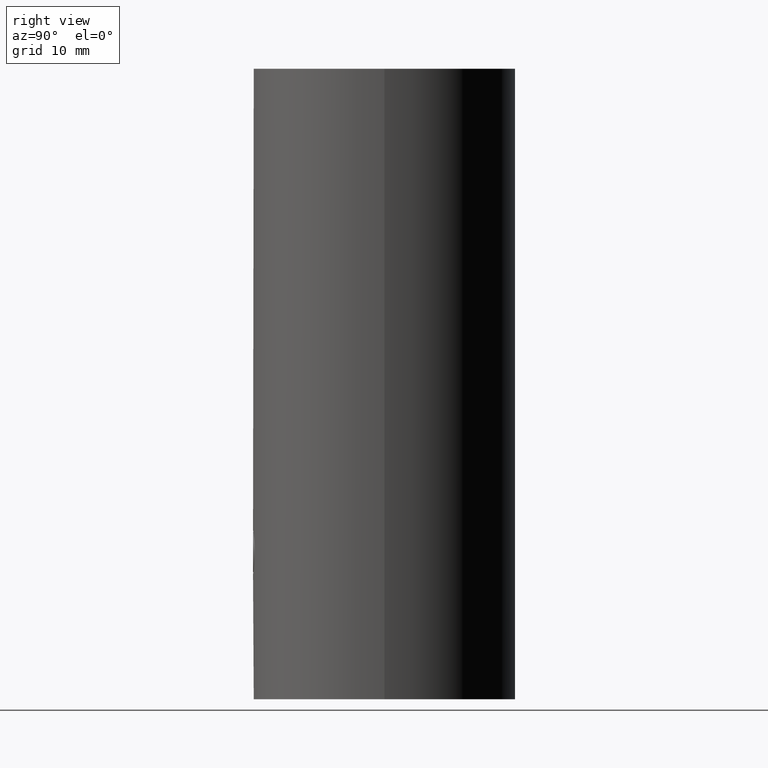
[diagram: clean part render]
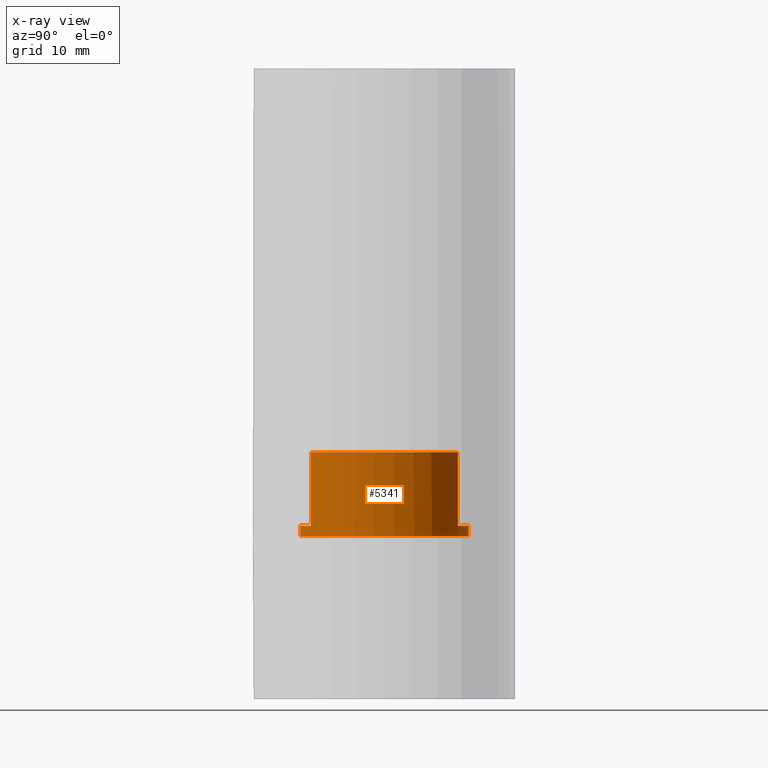
[diagram: x-ray — body ghosted, one internal face saturated and labeled with its STEP entity id]
A machine part, right view, then the same camera in x-ray: the body is ghosted and one INTERNAL B-rep face — a face not visible from any outside direction — is saturated and labeled: STEP entity #5341.
In plain terms, the highlighted cylindrical surface (partial cylindrical patch) has radius 8 mm, axis along (-0, -0, -1).
Its self-contained STEP definition (entity closure, byte-faithful):
#420 = CARTESIAN_POINT ( 'NONE',  ( 9.797174393178825700E-016, -8.000000000000000000, -23.50000000000000000 ) ) ;
#457 = DIRECTION ( 'NONE',  ( -0.0000000000000000000, -6.563074804307201300E-018, -1.000000000000000000 ) ) ;
#708 = ORIENTED_EDGE ( 'NONE', *, *, #5669, .F. ) ;
#734 = DIRECTION ( 'NONE',  ( -0.0000000000000000000, -0.0000000000000000000, 1.000000000000000000 ) ) ;
#891 = ORIENTED_EDGE ( 'NONE', *, *, #2887, .F. ) ;
#1478 = CARTESIAN_POINT ( 'NONE',  ( 0.0000000000000000000, 8.000000000000000000, -6.999999999999999100 ) ) ;
#1490 = AXIS2_PLACEMENT_3D ( 'NONE', #4744, #12102, #1557 ) ;
#1502 = EDGE_CURVE ( 'NONE', #4130, #5266, #7037, .T. ) ;
#1529 = DIRECTION ( 'NONE',  ( -0.0000000000000000000, -6.563074804307201300E-018, -1.000000000000000000 ) ) ;
#1557 = DIRECTION ( 'NONE',  ( 1.000000000000000000, 0.0000000000000000000, 0.0000000000000000000 ) ) ;
#1802 = DIRECTION ( 'NONE',  ( 0.0000000000000000000, 1.000000000000000000, -6.563074804307201300E-018 ) ) ;
#1902 = VECTOR ( 'NONE', #12879, 1000.000000000000000 ) ;
#1980 = AXIS2_PLACEMENT_3D ( 'NONE', #6881, #7935, #11919 ) ;
#2311 = CARTESIAN_POINT ( 'NONE',  ( 3.872983346207418400, 7.000000000000000000, -6.999999999999999100 ) ) ;
#2552 = AXIS2_PLACEMENT_3D ( 'NONE', #9877, #9827, #12874 ) ;
#2702 = DIRECTION ( 'NONE',  ( 0.0000000000000000000, 1.000000000000000000, 0.0000000000000000000 ) ) ;
#2887 = EDGE_CURVE ( 'NONE', #6209, #3852, #11442, .T. ) ;
#3852 = VERTEX_POINT ( 'NONE', #5855 ) ;
#4130 = VERTEX_POINT ( 'NONE', #2311 ) ;
#4236 = AXIS2_PLACEMENT_3D ( 'NONE', #4718, #1529, #2702 ) ;
#4337 = EDGE_CURVE ( 'NONE', #9305, #3852, #5991, .T. ) ;
#4354 = FACE_OUTER_BOUND ( 'NONE', #7746, .T. ) ;
#4718 = CARTESIAN_POINT ( 'NONE',  ( 0.0000000000000000000, -1.542322579012192500E-016, -23.50000000000000000 ) ) ;
#4744 = CARTESIAN_POINT ( 'NONE',  ( 0.0000000000000000000, 0.0000000000000000000, -6.999999999999999100 ) ) ;
#4755 = CARTESIAN_POINT ( 'NONE',  ( 3.872983346207417500, 6.999999999999998200, -6.999999999999999100 ) ) ;
#4938 = CARTESIAN_POINT ( 'NONE',  ( 0.0000000000000000000, 0.0000000000000000000, 0.0000000000000000000 ) ) ;
#5063 = EDGE_CURVE ( 'NONE', #13085, #8273, #8102, .T. ) ;
#5118 = CARTESIAN_POINT ( 'NONE',  ( 3.872983346207417500, -6.999999999999998200, -6.999999999999999100 ) ) ;
#5266 = VERTEX_POINT ( 'NONE', #1478 ) ;
#5341 = ADVANCED_FACE ( 'NONE', ( #4354 ), #6430, .T. ) ;
#5444 = LINE ( 'NONE', #7669, #1902 ) ;
#5669 = EDGE_CURVE ( 'NONE', #5266, #13085, #5444, .T. ) ;
#5855 = CARTESIAN_POINT ( 'NONE',  ( 3.872983346207417500, -6.999999999999998200, 0.0000000000000000000 ) ) ;
#5888 = ORIENTED_EDGE ( 'NONE', *, *, #12529, .F. ) ;
#5991 = CIRCLE ( 'NONE', #10361, 8.000000000000000000 ) ;
#6198 = VECTOR ( 'NONE', #457, 1000.000000000000000 ) ;
#6209 = VERTEX_POINT ( 'NONE', #5118 ) ;
#6430 = CYLINDRICAL_SURFACE ( 'NONE', #4236, 8.000000000000000000 ) ;
#6458 = CARTESIAN_POINT ( 'NONE',  ( 9.797174393178825700E-016, -8.000000000000000000, -8.000000000000000000 ) ) ;
#6881 = CARTESIAN_POINT ( 'NONE',  ( 0.0000000000000000000, -5.250459843445762300E-017, -8.000000000000000000 ) ) ;
#6979 = CARTESIAN_POINT ( 'NONE',  ( 9.797174393178825700E-016, -8.000000000000000000, -6.999999999999999100 ) ) ;
#7037 = CIRCLE ( 'NONE', #1490, 8.000000000000000000 ) ;
#7228 = DIRECTION ( 'NONE',  ( -0.0000000000000000000, -6.563074804307201300E-018, -1.000000000000000000 ) ) ;
#7669 = CARTESIAN_POINT ( 'NONE',  ( 0.0000000000000000000, 8.000000000000000000, -23.50000000000000000 ) ) ;
#7746 = EDGE_LOOP ( 'NONE', ( #5888, #12714, #10164, #708, #9539, #13164, #13185, #891 ) ) ;
#7935 = DIRECTION ( 'NONE',  ( -0.0000000000000000000, -6.563074804307201300E-018, -1.000000000000000000 ) ) ;
#8003 = DIRECTION ( 'NONE',  ( -0.0000000000000000000, -0.0000000000000000000, 1.000000000000000000 ) ) ;
#8102 = CIRCLE ( 'NONE', #1980, 8.000000000000000000 ) ;
#8273 = VERTEX_POINT ( 'NONE', #6458 ) ;
#8335 = VECTOR ( 'NONE', #734, 1000.000000000000000 ) ;
#9305 = VERTEX_POINT ( 'NONE', #12463 ) ;
#9539 = ORIENTED_EDGE ( 'NONE', *, *, #1502, .F. ) ;
#9673 = LINE ( 'NONE', #420, #6198 ) ;
#9827 = DIRECTION ( 'NONE',  ( 0.0000000000000000000, 0.0000000000000000000, 1.000000000000000000 ) ) ;
#9877 = CARTESIAN_POINT ( 'NONE',  ( 0.0000000000000000000, 0.0000000000000000000, -6.999999999999999100 ) ) ;
#9919 = EDGE_CURVE ( 'NONE', #11498, #8273, #9673, .T. ) ;
#10164 = ORIENTED_EDGE ( 'NONE', *, *, #5063, .F. ) ;
#10196 = CARTESIAN_POINT ( 'NONE',  ( 0.0000000000000000000, 8.000000000000000000, -8.000000000000000000 ) ) ;
#10361 = AXIS2_PLACEMENT_3D ( 'NONE', #4938, #7228, #1802 ) ;
#10450 = CIRCLE ( 'NONE', #2552, 8.000000000000000000 ) ;
#11121 = LINE ( 'NONE', #4755, #8335 ) ;
#11222 = CARTESIAN_POINT ( 'NONE',  ( 3.872983346207417500, -6.999999999999998200, -6.999999999999999100 ) ) ;
#11238 = EDGE_CURVE ( 'NONE', #4130, #9305, #11121, .T. ) ;
#11442 = LINE ( 'NONE', #11222, #11611 ) ;
#11498 = VERTEX_POINT ( 'NONE', #6979 ) ;
#11611 = VECTOR ( 'NONE', #8003, 1000.000000000000000 ) ;
#11919 = DIRECTION ( 'NONE',  ( 0.0000000000000000000, 1.000000000000000000, 0.0000000000000000000 ) ) ;
#12102 = DIRECTION ( 'NONE',  ( 0.0000000000000000000, 0.0000000000000000000, 1.000000000000000000 ) ) ;
#12463 = CARTESIAN_POINT ( 'NONE',  ( 3.872983346207417500, 6.999999999999998200, 0.0000000000000000000 ) ) ;
#12529 = EDGE_CURVE ( 'NONE', #11498, #6209, #10450, .T. ) ;
#12714 = ORIENTED_EDGE ( 'NONE', *, *, #9919, .T. ) ;
#12874 = DIRECTION ( 'NONE',  ( 1.000000000000000000, 0.0000000000000000000, 0.0000000000000000000 ) ) ;
#12879 = DIRECTION ( 'NONE',  ( -0.0000000000000000000, -6.563074804307201300E-018, -1.000000000000000000 ) ) ;
#13085 = VERTEX_POINT ( 'NONE', #10196 ) ;
#13164 = ORIENTED_EDGE ( 'NONE', *, *, #11238, .T. ) ;
#13185 = ORIENTED_EDGE ( 'NONE', *, *, #4337, .T. ) ;